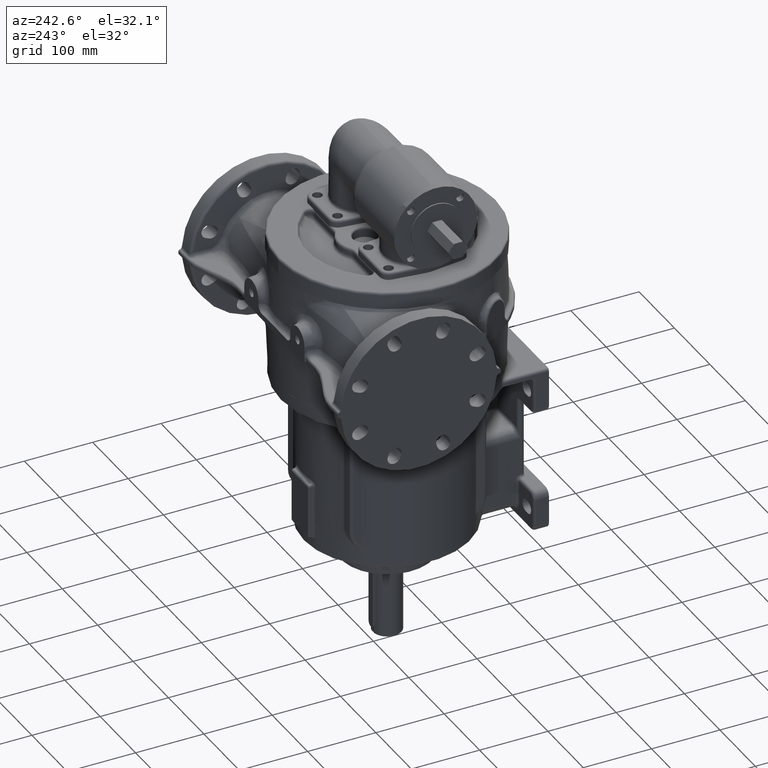
[diagram: clean part render]
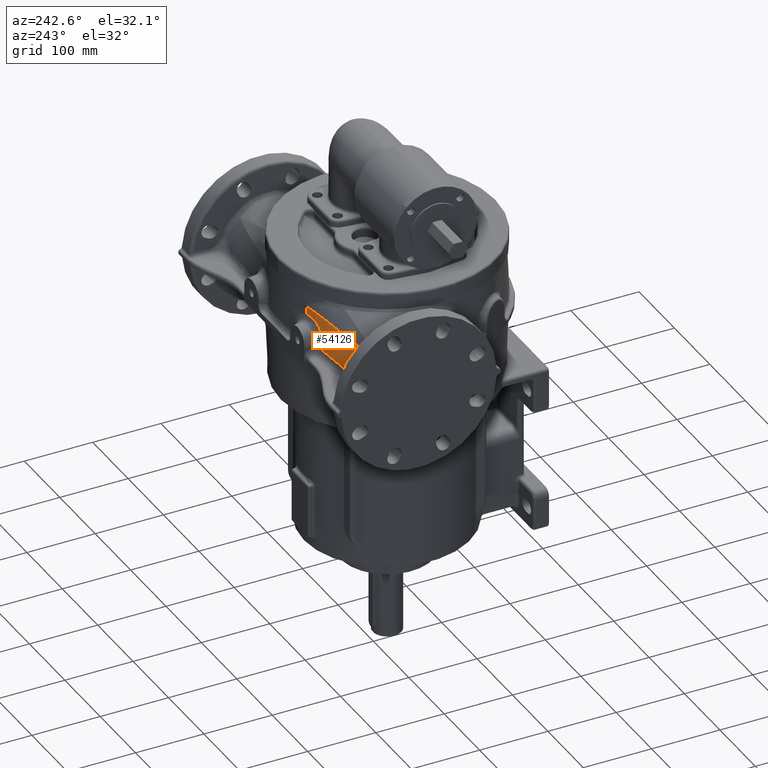
[diagram: same view with one face highlighted and labeled with its STEP entity id]
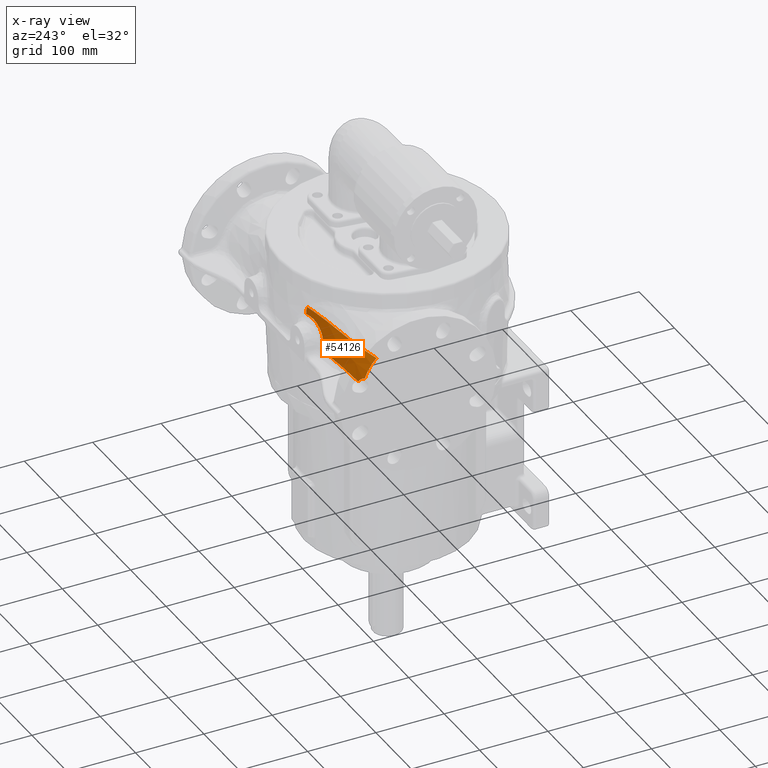
[diagram: x-ray of the same camera — body ghosted, the highlighted face saturated]
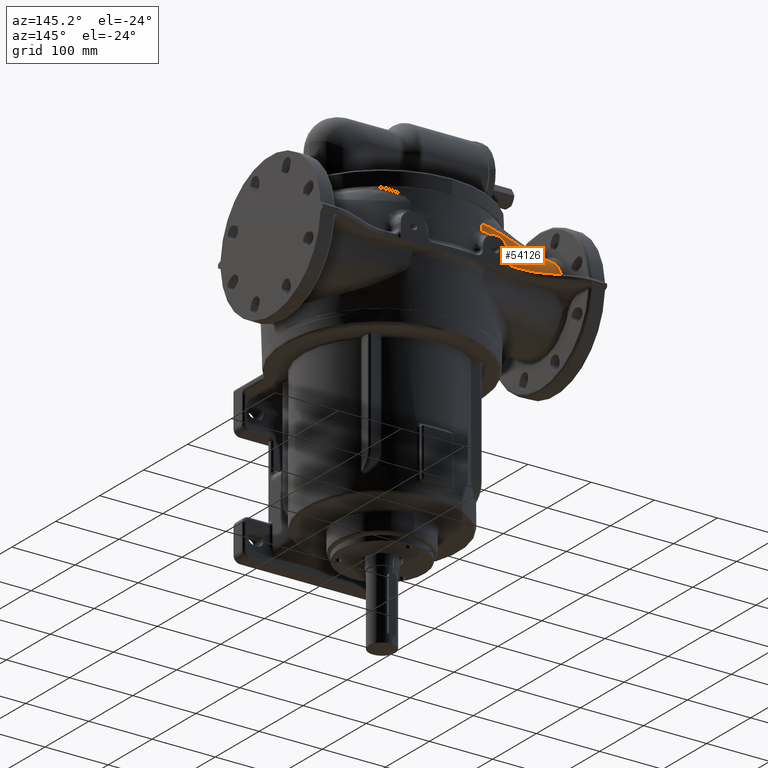
[diagram: same view with one face highlighted and labeled with its STEP entity id]
A machine part, auxiliary view. The second image highlights one B-rep face of the part: STEP entity #54126.
The next image is the same camera in x-ray: the body ghosted, the highlighted face saturated — about 0% of this face is hidden behind the body in this view.
A second angle (auxiliary view) of the same face is appended — the face is thin or edge-on in the first view.
In plain terms, the highlighted face is a freeform B-spline surface patch.
Its self-contained STEP definition (entity closure, byte-faithful):
#17645=CARTESIAN_POINT('',(-9.478196957606E1,3.225860239644E2,
1.157579830115E2));
#17646=CARTESIAN_POINT('',(-9.477991167166E1,3.225674101296E2,
1.160096259623E2));
#17647=CARTESIAN_POINT('',(-9.476748128978E1,3.225309182216E2,
1.165120127248E2));
#17648=CARTESIAN_POINT('',(-9.473251748626E1,3.224773037601E2,
1.172631371986E2));
#17649=CARTESIAN_POINT('',(-9.467732332321E1,3.224254513014E2,
1.180114841209E2));
#17650=CARTESIAN_POINT('',(-9.460317850095E1,3.223752942145E2,
1.187568966346E2));
#17651=CARTESIAN_POINT('',(-9.450992877412E1,3.223269678340E2,
1.194991832449E2));
#17652=CARTESIAN_POINT('',(-9.439775987542E1,3.222805652804E2,
1.202381819559E2));
#17653=CARTESIAN_POINT('',(-9.426672617169E1,3.222362064863E2,
1.209736900683E2));
#17654=CARTESIAN_POINT('',(-9.411685867186E1,3.221940055420E2,
1.217056763469E2));
#17655=CARTESIAN_POINT('',(-9.394815520835E1,3.221540290342E2,
1.224347342132E2));
#17656=CARTESIAN_POINT('',(-9.376054128018E1,3.221163680900E2,
1.231613115605E2));
#17657=CARTESIAN_POINT('',(-9.355379560939E1,3.220811231129E2,
1.238860138547E2));
#17658=CARTESIAN_POINT('',(-9.332814521507E1,3.220484895507E2,
1.246077172460E2));
#17659=CARTESIAN_POINT('',(-9.308397729429E1,3.220186647788E2,
1.253250935411E2));
#17660=CARTESIAN_POINT('',(-9.282178971988E1,3.219918368700E2,
1.260367867403E2));
#17661=CARTESIAN_POINT('',(-9.254197262239E1,3.219681624154E2,
1.267419770497E2));
#17662=CARTESIAN_POINT('',(-9.224461198071E1,3.219477706707E2,
1.274406285765E2));
#17663=CARTESIAN_POINT('',(-9.192981978130E1,3.219308011547E2,
1.281325480330E2));
#17664=CARTESIAN_POINT('',(-9.159766817806E1,3.219173969866E2,
1.288175606478E2));
#17665=CARTESIAN_POINT('',(-9.124804474918E1,3.219076964038E2,
1.294958338730E2));
#17666=CARTESIAN_POINT('',(-9.088097029667E1,3.219018202595E2,
1.301674686335E2));
#17667=CARTESIAN_POINT('',(-9.049628725852E1,3.218999058548E2,
1.308326800352E2));
#17668=CARTESIAN_POINT('',(-9.009428886638E1,3.219020991947E2,
1.314908197372E2));
#17669=CARTESIAN_POINT('',(-8.967568791185E1,3.219085304219E2,
1.321406376868E2));
#17670=CARTESIAN_POINT('',(-8.924119269190E1,3.219193064244E2,
1.327810456996E2));
#17671=CARTESIAN_POINT('',(-8.879155280984E1,3.219345114535E2,
1.334110146803E2));
#17672=CARTESIAN_POINT('',(-8.832708121943E1,3.219542292656E2,
1.340301861231E2));
#17673=CARTESIAN_POINT('',(-8.784808408022E1,3.219785391084E2,
1.346381833915E2));
#17674=CARTESIAN_POINT('',(-8.735494919588E1,3.220075084985E2,
1.352345097760E2));
#17675=CARTESIAN_POINT('',(-8.684753161252E1,3.220412237354E2,
1.358193752874E2));
#17676=CARTESIAN_POINT('',(-8.632525054184E1,3.220798249869E2,
1.363932316418E2));
#17677=CARTESIAN_POINT('',(-8.578766388830E1,3.221234203325E2,
1.369565553278E2));
#17678=CARTESIAN_POINT('',(-8.523438872781E1,3.221721285759E2,
1.375095763830E2));
#17679=CARTESIAN_POINT('',(-8.466586805113E1,3.222259961487E2,
1.380516280364E2));
#17680=CARTESIAN_POINT('',(-8.408248699136E1,3.222850604659E2,
1.385821265366E2));
#17681=CARTESIAN_POINT('',(-8.348461240829E1,3.223493501057E2,
1.391005037690E2));
#17682=CARTESIAN_POINT('',(-8.287297263167E1,3.224188401643E2,
1.396059017181E2));
#17683=CARTESIAN_POINT('',(-8.224847948735E1,3.224934629904E2,
1.400973812171E2));
#17684=CARTESIAN_POINT('',(-8.161213014464E1,3.225731169266E2,
1.405740184863E2));
#17685=CARTESIAN_POINT('',(-8.096466865079E1,3.226577084160E2,
1.410351605244E2));
#17686=CARTESIAN_POINT('',(-8.030546252780E1,3.227473175324E2,
1.414811049296E2));
#17687=CARTESIAN_POINT('',(-7.963399833691E1,3.228420229854E2,
1.419118826686E2));
#17688=CARTESIAN_POINT('',(-7.894963366863E1,3.229419166462E2,
1.423276153760E2));
#17689=CARTESIAN_POINT('',(-7.825220761128E1,3.230470131277E2,
1.427281586158E2));
#17690=CARTESIAN_POINT('',(-7.754173190505E1,3.231573011442E2,
1.431131849730E2));
#17691=CARTESIAN_POINT('',(-7.681802294500E1,3.232727964618E2,
1.434824248856E2));
#17692=CARTESIAN_POINT('',(-7.608156515406E1,3.233934055103E2,
1.438352107464E2));
#17693=CARTESIAN_POINT('',(-7.533457362160E1,3.235187276077E2,
1.441701482117E2));
#17694=CARTESIAN_POINT('',(-7.457906231887E1,3.236483590343E2,
1.444861479260E2));
#17695=CARTESIAN_POINT('',(-7.381730330798E1,3.237818195451E2,
1.447822141773E2));
#17696=CARTESIAN_POINT('',(-7.305000094121E1,3.239188812413E2,
1.450581012537E2));
#17697=CARTESIAN_POINT('',(-7.227769110392E1,3.240593424270E2,
1.453136256207E2));
#17698=CARTESIAN_POINT('',(-7.150102191342E1,3.242029778491E2,
1.455485620466E2));
#17699=CARTESIAN_POINT('',(-7.072031397920E1,3.243496155254E2,
1.457628463715E2));
#17700=CARTESIAN_POINT('',(-6.993557132095E1,3.244991373710E2,
1.459565704661E2));
#17701=CARTESIAN_POINT('',(-6.914683562114E1,3.246514240589E2,
1.461297474047E2));
#17702=CARTESIAN_POINT('',(-6.835420443266E1,3.248063493559E2,
1.462823329412E2));
#17703=CARTESIAN_POINT('',(-6.755875699947E1,3.249635952418E2,
1.464140938542E2));
#17704=CARTESIAN_POINT('',(-6.676150778195E1,3.251228517028E2,
1.465248767059E2));
#17705=CARTESIAN_POINT('',(-6.596356271161E1,3.252837877039E2,
1.466145764474E2));
#17706=CARTESIAN_POINT('',(-6.516562887729E1,3.254461515736E2,
1.466831867589E2));
#17707=CARTESIAN_POINT('',(-6.436822348621E1,3.256097329141E2,
1.467307299126E2));
#17708=CARTESIAN_POINT('',(-6.357194282277E1,3.257743082819E2,
1.467572344677E2));
#17709=CARTESIAN_POINT('',(-6.277721913852E1,3.259396924851E2,
1.467627333123E2));
#17710=CARTESIAN_POINT('',(-6.198396068325E1,3.261058116803E2,
1.467472950393E2));
#17711=CARTESIAN_POINT('',(-6.119214677304E1,3.262725807887E2,
1.467110002225E2));
#17712=CARTESIAN_POINT('',(-6.040166929490E1,3.264399411654E2,
1.466538586771E2));
#17713=CARTESIAN_POINT('',(-5.961310523038E1,3.266076958951E2,
1.465758851913E2));
#17714=CARTESIAN_POINT('',(-5.882704298037E1,3.267756467870E2,
1.464771673773E2));
#17715=CARTESIAN_POINT('',(-5.804443962427E1,3.269435330601E2,
1.463576525331E2));
#17716=CARTESIAN_POINT('',(-5.726480009062E1,3.271113650386E2,
1.462179013706E2));
#17717=CARTESIAN_POINT('',(-5.649309746719E1,3.272781532571E2,
1.460562900561E2));
#17718=CARTESIAN_POINT('',(-5.597363872730E1,3.273904911329E2,
1.459383985978E2));
#17719=CARTESIAN_POINT('',(-5.571419586452E1,3.274467922313E2,
1.458738131175E2));
#17721=CARTESIAN_POINT('',(-5.660040635016E1,3.266692060852E2,
1.571945601868E2));
#17722=CARTESIAN_POINT('',(-5.650940149645E1,3.267376472461E2,
1.563321319773E2));
#17723=CARTESIAN_POINT('',(-5.633560179099E1,3.268727448996E2,
1.545690623357E2));
#17724=CARTESIAN_POINT('',(-5.610059532707E1,3.270699957140E2,
1.518022493495E2));
#17725=CARTESIAN_POINT('',(-5.589380625313E1,3.272599892640E2,
1.489382477404E2));
#17726=CARTESIAN_POINT('',(-5.577138369950E1,3.273850189880E2,
1.469117392707E2));
#17727=CARTESIAN_POINT('',(-5.571419586452E1,3.274467922313E2,
1.458738131175E2));
#17729=CARTESIAN_POINT('',(-7.086784376358E1,3.234069226513E2,
1.568153252612E2));
#17730=CARTESIAN_POINT('',(-6.979801962487E1,3.236600443162E2,
1.568281829584E2));
#17731=CARTESIAN_POINT('',(-6.759969075165E1,3.241818537983E2,
1.567850706274E2));
#17732=CARTESIAN_POINT('',(-6.411878498901E1,3.249800928213E2,
1.569176058508E2));
#17733=CARTESIAN_POINT('',(-6.045076404677E1,3.258116405180E2,
1.570399438829E2));
#17734=CARTESIAN_POINT('',(-5.790247154720E1,3.263805981148E2,
1.571431382482E2));
#17735=CARTESIAN_POINT('',(-5.660040635016E1,3.266692060852E2,
1.571945601868E2));
#17737=CARTESIAN_POINT('',(-1.932011297816E2,2.956898884391E2,
1.458396416193E2));
#17738=CARTESIAN_POINT('',(-1.890767339075E2,2.961240543060E2,
1.457821471772E2));
#17739=CARTESIAN_POINT('',(-1.804127118295E2,2.976121891570E2,
1.456221012398E2));
#17740=CARTESIAN_POINT('',(-1.649765582079E2,3.013818177607E2,
1.455600752203E2));
#17741=CARTESIAN_POINT('',(-1.498120584397E2,3.050910775440E2,
1.462940671502E2));
#17742=CARTESIAN_POINT('',(-1.370139227340E2,3.080739712555E2,
1.476244481751E2));
#17743=CARTESIAN_POINT('',(-1.262069582913E2,3.105370181225E2,
1.491714716992E2));
#17744=CARTESIAN_POINT('',(-1.168315193869E2,3.126602605112E2,
1.507347528670E2));
#17745=CARTESIAN_POINT('',(-1.086361298150E2,3.145309717122E2,
1.521762988702E2));
#17746=CARTESIAN_POINT('',(-1.014656095471E2,3.161838023752E2,
1.534348001525E2));
#17747=CARTESIAN_POINT('',(-9.513643732136E1,3.176581902502E2,
1.544860856921E2));
#17748=CARTESIAN_POINT('',(-8.955622803739E1,3.189705679039E2,
1.553161842983E2));
#17749=CARTESIAN_POINT('',(-8.465474950724E1,3.201307084296E2,
1.559372152425E2));
#17750=CARTESIAN_POINT('',(-8.041811531358E1,3.211374097048E2,
1.563618722034E2));
#17751=CARTESIAN_POINT('',(-7.675702441939E1,3.220087640466E2,
1.566254524517E2));
#17752=CARTESIAN_POINT('',(-7.358981368793E1,3.227630200514E2,
1.567556326883E2));
#17753=CARTESIAN_POINT('',(-7.172884916794E1,3.232029658595E2,
1.568083196672E2));
#17754=CARTESIAN_POINT('',(-7.086784376358E1,3.234069226513E2,
1.568153252612E2));
#17756=CARTESIAN_POINT('',(-1.934598362407E2,3.130121416804E2,
1.194663614983E2));
#17757=CARTESIAN_POINT('',(-1.934575334625E2,3.128483794071E2,
1.199204635986E2));
#17758=CARTESIAN_POINT('',(-1.934527887704E2,3.125113987838E2,
1.208245181677E2));
#17759=CARTESIAN_POINT('',(-1.934452343516E2,3.119779046614E2,
1.221674677281E2));
#17760=CARTESIAN_POINT('',(-1.934372268115E2,3.114165392064E2,
1.234971481011E2));
#17761=CARTESIAN_POINT('',(-1.934287440135E2,3.108273070210E2,
1.248136302013E2));
#17762=CARTESIAN_POINT('',(-1.934197552453E2,3.102101727586E2,
1.261169514322E2));
#17763=CARTESIAN_POINT('',(-1.934102325115E2,3.095649799870E2,
1.274072347166E2));
#17764=CARTESIAN_POINT('',(-1.934002009095E2,3.088917030750E2,
1.286845901077E2));
#17765=CARTESIAN_POINT('',(-1.933896734565E2,3.081902206368E2,
1.299492020161E2));
#17766=CARTESIAN_POINT('',(-1.933786645903E2,3.074605769722E2,
1.312008161900E2));
#17767=CARTESIAN_POINT('',(-1.933671935822E2,3.067031503360E2,
1.324385903804E2));
#17768=CARTESIAN_POINT('',(-1.933552801226E2,3.059183556382E2,
1.336616663295E2));
#17769=CARTESIAN_POINT('',(-1.933429490516E2,3.051069872017E2,
1.348686770990E2));
#17770=CARTESIAN_POINT('',(-1.933302248944E2,3.042698475606E2,
1.360583880164E2));
#17771=CARTESIAN_POINT('',(-1.933171274554E2,3.034075979094E2,
1.372298637531E2));
#17772=CARTESIAN_POINT('',(-1.933036767726E2,3.025209483662E2,
1.383821714742E2));
#17773=CARTESIAN_POINT('',(-1.932898916639E2,3.016105783273E2,
1.395144854029E2));
#17774=CARTESIAN_POINT('',(-1.932757908786E2,3.006771539471E2,
1.406260468869E2));
#17775=CARTESIAN_POINT('',(-1.932613906008E2,2.997214118617E2,
1.417160620888E2));
#17776=CARTESIAN_POINT('',(-1.932467082533E2,2.987442123753E2,
1.427836587838E2));
#17777=CARTESIAN_POINT('',(-1.932317628074E2,2.977464461381E2,
1.438280055725E2));
#17778=CARTESIAN_POINT('',(-1.932165736243E2,2.967289863396E2,
1.448483554519E2));
#17779=CARTESIAN_POINT('',(-1.932063005408E2,2.960382780245E2,
1.455119930779E2));
#17780=CARTESIAN_POINT('',(-1.932011297816E2,2.956898884391E2,
1.458396416193E2));
#17782=CARTESIAN_POINT('',(-1.934598362407E2,3.130121416804E2,
1.194663614983E2));
#17783=CARTESIAN_POINT('',(-1.932684214729E2,3.130433038723E2,
1.193901682463E2));
#17784=CARTESIAN_POINT('',(-1.928873938539E2,3.131073506708E2,
1.192320904106E2));
#17785=CARTESIAN_POINT('',(-1.923210782222E2,3.132084307621E2,
1.189792801104E2));
#17786=CARTESIAN_POINT('',(-1.917586157923E2,3.133140829346E2,
1.187108600063E2));
#17787=CARTESIAN_POINT('',(-1.912011062173E2,3.134240869940E2,
1.184267051771E2));
#17788=CARTESIAN_POINT('',(-1.906490070916E2,3.135382173752E2,
1.181265356764E2));
#17789=CARTESIAN_POINT('',(-1.901032521012E2,3.136561059959E2,
1.178104653241E2));
#17790=CARTESIAN_POINT('',(-1.895632400119E2,3.137776417374E2,
1.174779054838E2));
#17791=CARTESIAN_POINT('',(-1.890246793955E2,3.139035573011E2,
1.171258336764E2));
#17792=CARTESIAN_POINT('',(-1.884832345682E2,3.140347001616E2,
1.167505844440E2));
#17793=CARTESIAN_POINT('',(-1.879383570432E2,3.141709657647E2,
1.163509029911E2));
#17794=CARTESIAN_POINT('',(-1.873972553449E2,3.143099738754E2,
1.159323888920E2));
#17795=CARTESIAN_POINT('',(-1.868673215580E2,3.144497978977E2,
1.154995891268E2));
#17796=CARTESIAN_POINT('',(-1.863513494693E2,3.145894044572E2,
1.150547679078E2));
#17797=CARTESIAN_POINT('',(-1.858481147968E2,3.147288443661E2,
1.145968348877E2));
#17798=CARTESIAN_POINT('',(-1.853572519253E2,3.148679306415E2,
1.141253747419E2));
#17799=CARTESIAN_POINT('',(-1.848782670783E2,3.150064928069E2,
1.136398818363E2));
#17800=CARTESIAN_POINT('',(-1.844109681992E2,3.151442682548E2,
1.131401309940E2));
#17801=CARTESIAN_POINT('',(-1.839546469132E2,3.152810748299E2,
1.126255747847E2));
#17802=CARTESIAN_POINT('',(-1.835102225391E2,3.154161816049E2,
1.120977742976E2));
#17803=CARTESIAN_POINT('',(-1.830805978583E2,3.155486260835E2,
1.115593600396E2));
#17804=CARTESIAN_POINT('',(-1.826678879147E2,3.156775600597E2,
1.110129797052E2));
#17805=CARTESIAN_POINT('',(-1.822741578112E2,3.158021404101E2,
1.104617154646E2));
#17806=CARTESIAN_POINT('',(-1.819006919444E2,3.159217438281E2,
1.099083080910E2));
#17807=CARTESIAN_POINT('',(-1.816669421722E2,3.159974463529E2,
1.095412710177E2));
#17808=CARTESIAN_POINT('',(-1.815534966919E2,3.160343940176E2,
1.093581220816E2));
#17810=CARTESIAN_POINT('',(-1.815533742526E2,3.160342997615E2,
1.093575164032E2));
#17811=CARTESIAN_POINT('',(-1.814425417953E2,3.160433679220E2,
1.093252581490E2));
#17812=CARTESIAN_POINT('',(-1.812129920648E2,3.160614946823E2,
1.092635651254E2));
#17813=CARTESIAN_POINT('',(-1.808437643657E2,3.160883187772E2,
1.091736328899E2));
#17814=CARTESIAN_POINT('',(-1.804516549358E2,3.161145747810E2,
1.090914551570E2));
#17815=CARTESIAN_POINT('',(-1.800379276602E2,3.161400223168E2,
1.090174510681E2));
#17816=CARTESIAN_POINT('',(-1.796041557796E2,3.161644747052E2,
1.089530878417E2));
#17817=CARTESIAN_POINT('',(-1.791519685631E2,3.161877647004E2,
1.088993587523E2));
#17818=CARTESIAN_POINT('',(-1.786841306542E2,3.162096743794E2,
1.088574411273E2));
#17819=CARTESIAN_POINT('',(-1.782035427057E2,3.162300233261E2,
1.088282178073E2));
#17820=CARTESIAN_POINT('',(-1.777127906591E2,3.162486693219E2,
1.088123658328E2));
#17821=CARTESIAN_POINT('',(-1.773815925406E2,3.162598542712E2,
1.088110262466E2));
#17822=CARTESIAN_POINT('',(-1.772147600268E2,3.162651394096E2,
1.088127135581E2));
#17824=CARTESIAN_POINT('',(-1.772147600268E2,3.162651394096E2,
1.088127135581E2));
#17825=CARTESIAN_POINT('',(-1.748469601221E2,3.163401513497E2,
1.088366625762E2));
#17826=CARTESIAN_POINT('',(-1.700807333312E2,3.165127498335E2,
1.088899397917E2));
#17827=CARTESIAN_POINT('',(-1.628359656641E2,3.168410294539E2,
1.089828474132E2));
#17828=CARTESIAN_POINT('',(-1.555063652671E2,3.172394915815E2,
1.090851054037E2));
#17829=CARTESIAN_POINT('',(-1.480990251445E2,3.177088738870E2,
1.091938099514E2));
#17830=CARTESIAN_POINT('',(-1.406220397135E2,3.182495309332E2,
1.093058672033E2));
#17831=CARTESIAN_POINT('',(-1.330828972703E2,3.188615428275E2,
1.094181670956E2));
#17832=CARTESIAN_POINT('',(-1.254900556607E2,3.195446291997E2,
1.095277288143E2));
#17833=CARTESIAN_POINT('',(-1.178553998558E2,3.202979052585E2,
1.096318449515E2));
#17834=CARTESIAN_POINT('',(-1.101907534085E2,3.211204703736E2,
1.097289133610E2));
#17835=CARTESIAN_POINT('',(-1.025065741122E2,3.220113755212E2,
1.098178121871E2));
#17836=CARTESIAN_POINT('',(-9.738139987495E1,3.226496435416E2,
1.098711651891E2));
#17837=CARTESIAN_POINT('',(-9.481744286970E1,3.229799458113E2,
1.098963373393E2));
#17839=CARTESIAN_POINT('',(-9.481744286970E1,3.229799458113E2,
1.098963373393E2));
#17840=CARTESIAN_POINT('',(-9.481470429032E1,3.229403132935E2,
1.105520664675E2));
#17841=CARTESIAN_POINT('',(-9.480839481222E1,3.228582696276E2,
1.118606458150E2));
#17842=CARTESIAN_POINT('',(-9.479653876170E1,3.227269705110E2,
1.138137837307E2));
#17843=CARTESIAN_POINT('',(-9.478708314548E1,3.226339623517E2,
1.151108723988E2));
#17844=CARTESIAN_POINT('',(-9.478197489946E1,3.225860628783E2,
1.157579859330E2));
#24276=CARTESIAN_POINT('',(-1.932020453723E2,2.956900157790E2,
1.458398617336E2));
#24358=CARTESIAN_POINT('',(-5.660307960141E1,3.266743105196E2,
1.571948132709E2));
#24363=CARTESIAN_POINT('',(-7.086638878802E1,3.234112594141E2,
1.568180117506E2));
#32902=VERTEX_POINT('',#24358);
#32926=VERTEX_POINT('',#24363);
#32927=VERTEX_POINT('',#17645);
#32928=VERTEX_POINT('',#17719);
#33326=VERTEX_POINT('',#17839);
#33327=VERTEX_POINT('',#17810);
#33328=VERTEX_POINT('',#17822);
#33334=VERTEX_POINT('',#17782);
#33377=VERTEX_POINT('',#24276);
#54072=CARTESIAN_POINT('',(-5.263286069926E1,3.293962134383E2,
1.106034564426E2));
#54073=CARTESIAN_POINT('',(-6.458642575656E1,3.272961789476E2,
1.103236047055E2));
#54074=CARTESIAN_POINT('',(-8.896937018615E1,3.235147512129E2,
1.095786580972E2));
#54075=CARTESIAN_POINT('',(-1.259212829693E2,3.193518683358E2,
1.083317315487E2));
#54076=CARTESIAN_POINT('',(-1.613506185758E2,3.169075199635E2,
1.073890154849E2));
#54077=CARTESIAN_POINT('',(-1.843243439988E2,3.162872930683E2,
1.070067144698E2));
#54078=CARTESIAN_POINT('',(-1.947837630296E2,3.162172776432E2,
1.068805548821E2));
#54079=CARTESIAN_POINT('',(-5.300318952987E1,3.290317695341E2,
1.196377406367E2));
#54080=CARTESIAN_POINT('',(-6.495587787444E1,3.269049267418E2,
1.191825125826E2));
#54081=CARTESIAN_POINT('',(-8.930883379916E1,3.230252772520E2,
1.179387404566E2));
#54082=CARTESIAN_POINT('',(-1.261736062281E2,3.186382565820E2,
1.158528151466E2));
#54083=CARTESIAN_POINT('',(-1.614953711598E2,3.159513630647E2,
1.143427158301E2));
#54084=CARTESIAN_POINT('',(-1.843831121385E2,3.152406011824E2,
1.137788325480E2));
#54085=CARTESIAN_POINT('',(-1.948064978952E2,3.151681425902E2,
1.136040900136E2));
#54086=CARTESIAN_POINT('',(-5.395677602385E1,3.281610440905E2,
1.400104125527E2));
#54087=CARTESIAN_POINT('',(-6.597559435596E1,3.258887262133E2,
1.392152990490E2));
#54088=CARTESIAN_POINT('',(-9.034475936049E1,3.214750178427E2,
1.367582629412E2));
#54089=CARTESIAN_POINT('',(-1.270492797499E2,3.158829225298E2,
1.323946717658E2));
#54090=CARTESIAN_POINT('',(-1.620646967365E2,3.118951874838E2,
1.293423111041E2));
#54091=CARTESIAN_POINT('',(-1.846184126364E2,3.106769300817E2,
1.283746371083E2));
#54092=CARTESIAN_POINT('',(-1.948904102367E2,3.105688384312E2,
1.281687595746E2));
#54093=CARTESIAN_POINT('',(-5.520871669688E1,3.268522746996E2,
1.604671115767E2));
#54094=CARTESIAN_POINT('',(-6.737681931873E1,3.241645808941E2,
1.592966952346E2));
#54095=CARTESIAN_POINT('',(-9.190574700659E1,3.185029941741E2,
1.553419284934E2));
#54096=CARTESIAN_POINT('',(-1.285919003302E2,3.103557944888E2,
1.479590622850E2));
#54097=CARTESIAN_POINT('',(-1.631578348959E2,3.038284150055E2,
1.424525613583E2));
#54098=CARTESIAN_POINT('',(-1.850877161852E2,3.016639275339E2,
1.406983046918E2));
#54099=CARTESIAN_POINT('',(-1.950671160918E2,3.013942887639E2,
1.404505969787E2));
#54100=CARTESIAN_POINT('',(-5.596275373402E1,3.259747120076E2,
1.715467210358E2));
#54101=CARTESIAN_POINT('',(-6.821721633552E1,3.229782049296E2,
1.700694409731E2));
#54102=CARTESIAN_POINT('',(-9.284626078323E1,3.164475462754E2,
1.650754905951E2));
#54103=CARTESIAN_POINT('',(-1.295412868559E2,3.065684860455E2,
1.557293302244E2));
#54104=CARTESIAN_POINT('',(-1.638124776273E2,2.983768100868E2,
1.486386530055E2));
#54105=CARTESIAN_POINT('',(-1.853618041910E2,2.956443987387E2,
1.463714518840E2));
#54106=CARTESIAN_POINT('',(-1.951690243979E2,2.952815396172E2,
1.460719115579E2));
#54107=B_SPLINE_SURFACE_WITH_KNOTS('',3,3,((#54072,#54073,#54074,#54075,#54076,
#54077,#54078),(#54079,#54080,#54081,#54082,#54083,#54084,#54085),(#54086,
#54087,#54088,#54089,#54090,#54091,#54092),(#54093,#54094,#54095,#54096,#54097,
#54098,#54099),(#54100,#54101,#54102,#54103,#54104,#54105,#54106)),
.UNSPECIFIED.,.F.,.F.,.F.,(4,1,4),(4,1,1,1,4),(5.350138645969E-1,
7.443251973721E-1,1.001287203463E0),(1.380131991629E-1,3.480962710094E-1,
5.653975140063E-1,7.826987570031E-1,9.640648699443E-1),.UNSPECIFIED.);
#54108=ORIENTED_EDGE('',*,*,#54063,.T.);
#54110=ORIENTED_EDGE('',*,*,#54109,.F.);
#54112=ORIENTED_EDGE('',*,*,#54111,.F.);
#54114=ORIENTED_EDGE('',*,*,#54113,.F.);
#54116=ORIENTED_EDGE('',*,*,#54115,.F.);
#54118=ORIENTED_EDGE('',*,*,#54117,.T.);
#54120=ORIENTED_EDGE('',*,*,#54119,.T.);
#54122=ORIENTED_EDGE('',*,*,#54121,.T.);
#54123=ORIENTED_EDGE('',*,*,#54015,.T.);
#54124=EDGE_LOOP('',(#54108,#54110,#54112,#54114,#54116,#54118,#54120,#54122,
#54123));
#54125=FACE_OUTER_BOUND('',#54124,.F.);
#54126=ADVANCED_FACE('',(#54125),#54107,.F.);
#17720=B_SPLINE_CURVE_WITH_KNOTS('',3,(#17645,#17646,#17647,#17648,#17649,
#17650,#17651,#17652,#17653,#17654,#17655,#17656,#17657,#17658,#17659,#17660,
#17661,#17662,#17663,#17664,#17665,#17666,#17667,#17668,#17669,#17670,#17671,
#17672,#17673,#17674,#17675,#17676,#17677,#17678,#17679,#17680,#17681,#17682,
#17683,#17684,#17685,#17686,#17687,#17688,#17689,#17690,#17691,#17692,#17693,
#17694,#17695,#17696,#17697,#17698,#17699,#17700,#17701,#17702,#17703,#17704,
#17705,#17706,#17707,#17708,#17709,#17710,#17711,#17712,#17713,#17714,#17715,
#17716,#17717,#17718,#17719),.UNSPECIFIED.,.F.,.F.,(4,1,1,1,1,1,1,1,1,1,1,1,1,1,
1,1,1,1,1,1,1,1,1,1,1,1,1,1,1,1,1,1,1,1,1,1,1,1,1,1,1,1,1,1,1,1,1,1,1,1,1,1,1,1,
1,1,1,1,1,1,1,1,1,1,1,1,1,1,1,1,1,1,4),(0.E0,1.388888888889E-2,
2.777777777778E-2,4.166666666667E-2,5.555555555556E-2,6.944444444444E-2,
8.333333333333E-2,9.722222222222E-2,1.111111111111E-1,1.25E-1,1.388888888889E-1,
1.527777777778E-1,1.666666666667E-1,1.805555555556E-1,1.944444444444E-1,
2.083333333333E-1,2.222222222222E-1,2.361111111111E-1,2.5E-1,2.638888888889E-1,
2.777777777778E-1,2.916666666667E-1,3.055555555556E-1,3.194444444444E-1,
3.333333333333E-1,3.472222222222E-1,3.611111111111E-1,3.75E-1,3.888888888889E-1,
4.027777777778E-1,4.166666666667E-1,4.305555555556E-1,4.444444444444E-1,
4.583333333333E-1,4.722222222222E-1,4.861111111111E-1,5.E-1,5.138888888889E-1,
5.277777777778E-1,5.416666666667E-1,5.555555555556E-1,5.694444444444E-1,
5.833333333333E-1,5.972222222222E-1,6.111111111111E-1,6.25E-1,6.388888888889E-1,
6.527777777778E-1,6.666666666667E-1,6.805555555556E-1,6.944444444444E-1,
7.083333333333E-1,7.222222222222E-1,7.361111111111E-1,7.5E-1,7.638888888889E-1,
7.777777777778E-1,7.916666666667E-1,8.055555555556E-1,8.194444444444E-1,
8.333333333333E-1,8.472222222222E-1,8.611111111111E-1,8.75E-1,8.888888888889E-1,
9.027777777778E-1,9.166666666667E-1,9.305555555556E-1,9.444444444444E-1,
9.583333333333E-1,9.722222222222E-1,9.861111111111E-1,1.E0),.UNSPECIFIED.);
#17728=B_SPLINE_CURVE_WITH_KNOTS('',3,(#17721,#17722,#17723,#17724,#17725,
#17726,#17727),.UNSPECIFIED.,.F.,.F.,(4,1,1,1,4),(0.E0,2.5E-1,5.E-1,7.5E-1,
1.E0),.UNSPECIFIED.);
#17736=B_SPLINE_CURVE_WITH_KNOTS('',3,(#17729,#17730,#17731,#17732,#17733,
#17734,#17735),.UNSPECIFIED.,.F.,.F.,(4,1,1,1,4),(0.E0,2.5E-1,5.E-1,7.5E-1,
1.E0),.UNSPECIFIED.);
#17755=B_SPLINE_CURVE_WITH_KNOTS('',3,(#17737,#17738,#17739,#17740,#17741,
#17742,#17743,#17744,#17745,#17746,#17747,#17748,#17749,#17750,#17751,#17752,
#17753,#17754),.UNSPECIFIED.,.F.,.F.,(4,1,1,1,1,1,1,1,1,1,1,1,1,1,1,4),(0.E0,
6.666666666667E-2,1.333333333333E-1,2.E-1,2.666666666667E-1,3.333333333333E-1,
4.E-1,4.666666666667E-1,5.333333333333E-1,6.E-1,6.666666666667E-1,
7.333333333333E-1,8.E-1,8.666666666667E-1,9.333333333333E-1,1.E0),
.UNSPECIFIED.);
#17781=B_SPLINE_CURVE_WITH_KNOTS('',3,(#17756,#17757,#17758,#17759,#17760,
#17761,#17762,#17763,#17764,#17765,#17766,#17767,#17768,#17769,#17770,#17771,
#17772,#17773,#17774,#17775,#17776,#17777,#17778,#17779,#17780),.UNSPECIFIED.,
.F.,.F.,(4,1,1,1,1,1,1,1,1,1,1,1,1,1,1,1,1,1,1,1,1,1,4),(0.E0,4.545454545455E-2,
9.090909090909E-2,1.363636363636E-1,1.818181818182E-1,2.272727272727E-1,
2.727272727273E-1,3.181818181818E-1,3.636363636364E-1,4.090909090909E-1,
4.545454545455E-1,5.E-1,5.454545454545E-1,5.909090909091E-1,6.363636363636E-1,
6.818181818182E-1,7.272727272727E-1,7.727272727273E-1,8.181818181818E-1,
8.636363636364E-1,9.090909090909E-1,9.545454545455E-1,1.E0),.UNSPECIFIED.);
#17809=B_SPLINE_CURVE_WITH_KNOTS('',3,(#17782,#17783,#17784,#17785,#17786,
#17787,#17788,#17789,#17790,#17791,#17792,#17793,#17794,#17795,#17796,#17797,
#17798,#17799,#17800,#17801,#17802,#17803,#17804,#17805,#17806,#17807,#17808),
.UNSPECIFIED.,.F.,.F.,(4,1,1,1,1,1,1,1,1,1,1,1,1,1,1,1,1,1,1,1,1,1,1,1,4),(0.E0,
4.166666666667E-2,8.333333333333E-2,1.25E-1,1.666666666667E-1,2.083333333333E-1,
2.5E-1,2.916666666667E-1,3.333333333333E-1,3.75E-1,4.166666666667E-1,
4.583333333333E-1,5.E-1,5.416666666667E-1,5.833333333333E-1,6.25E-1,
6.666666666667E-1,7.083333333333E-1,7.5E-1,7.916666666667E-1,8.333333333333E-1,
8.75E-1,9.166666666667E-1,9.583333333333E-1,1.E0),.UNSPECIFIED.);
#17823=B_SPLINE_CURVE_WITH_KNOTS('',3,(#17810,#17811,#17812,#17813,#17814,
#17815,#17816,#17817,#17818,#17819,#17820,#17821,#17822),.UNSPECIFIED.,.F.,.F.,(
4,1,1,1,1,1,1,1,1,1,4),(0.E0,1.E-1,2.E-1,3.E-1,4.E-1,5.E-1,6.E-1,7.E-1,8.E-1,
9.E-1,1.E0),.UNSPECIFIED.);
#17838=B_SPLINE_CURVE_WITH_KNOTS('',3,(#17824,#17825,#17826,#17827,#17828,
#17829,#17830,#17831,#17832,#17833,#17834,#17835,#17836,#17837),.UNSPECIFIED.,
.F.,.F.,(4,1,1,1,1,1,1,1,1,1,1,4),(0.E0,9.090909090909E-2,1.818181818182E-1,
2.727272727273E-1,3.636363636364E-1,4.545454545455E-1,5.454545454545E-1,
6.363636363636E-1,7.272727272727E-1,8.181818181818E-1,9.090909090909E-1,1.E0),
.UNSPECIFIED.);
#17845=B_SPLINE_CURVE_WITH_KNOTS('',3,(#17839,#17840,#17841,#17842,#17843,
#17844),.UNSPECIFIED.,.F.,.F.,(4,1,1,4),(0.E0,3.333333333333E-1,
6.666666666667E-1,1.E0),.UNSPECIFIED.);
#54015=EDGE_CURVE('',#33326,#32927,#17845,.T.);
#54063=EDGE_CURVE('',#32927,#32928,#17720,.T.);
#54109=EDGE_CURVE('',#32902,#32928,#17728,.T.);
#54111=EDGE_CURVE('',#32926,#32902,#17736,.T.);
#54113=EDGE_CURVE('',#33377,#32926,#17755,.T.);
#54115=EDGE_CURVE('',#33334,#33377,#17781,.T.);
#54117=EDGE_CURVE('',#33334,#33327,#17809,.T.);
#54119=EDGE_CURVE('',#33327,#33328,#17823,.T.);
#54121=EDGE_CURVE('',#33328,#33326,#17838,.T.);